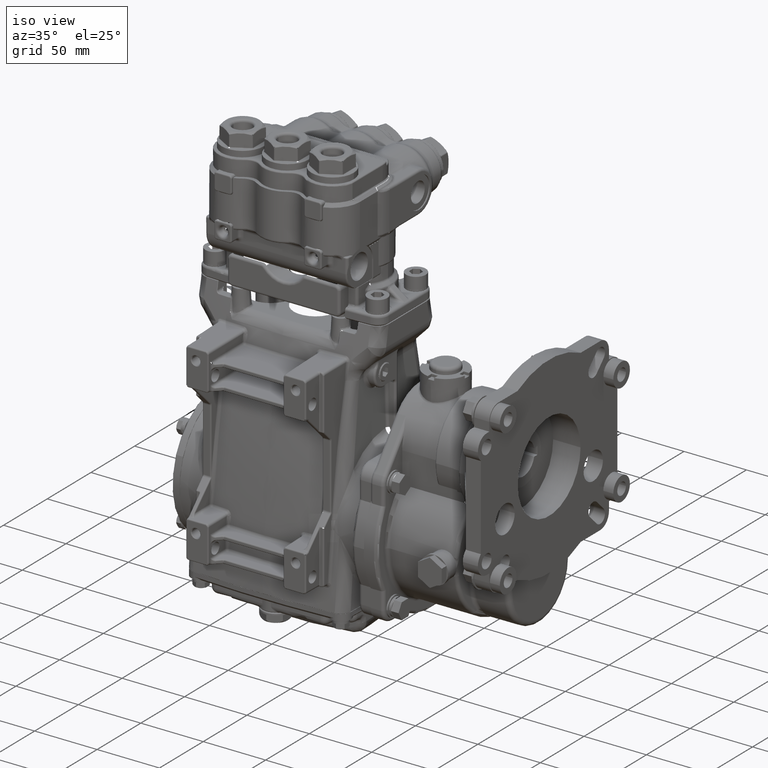
[diagram: clean part render]
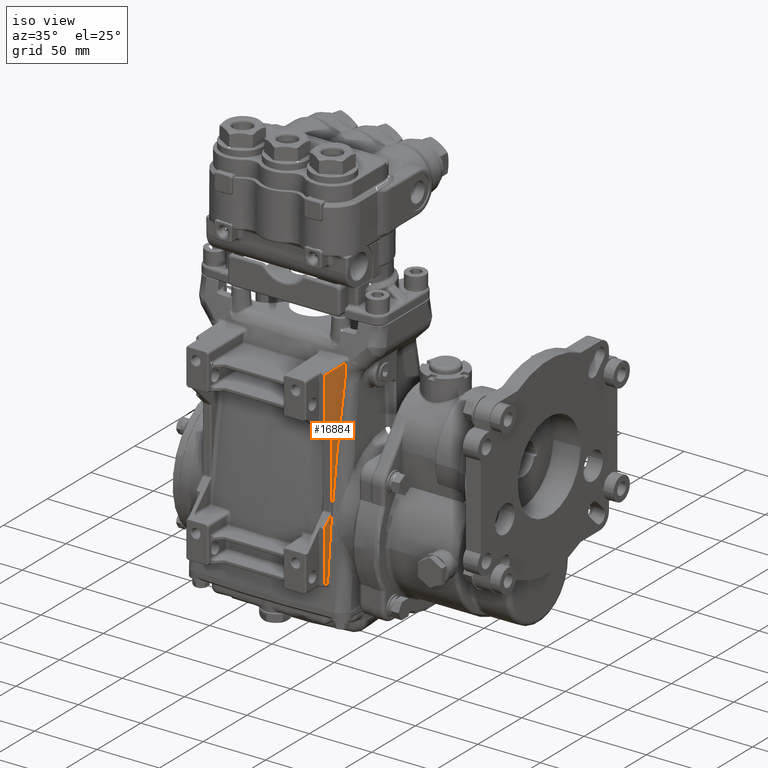
[diagram: same view with one face highlighted and labeled with its STEP entity id]
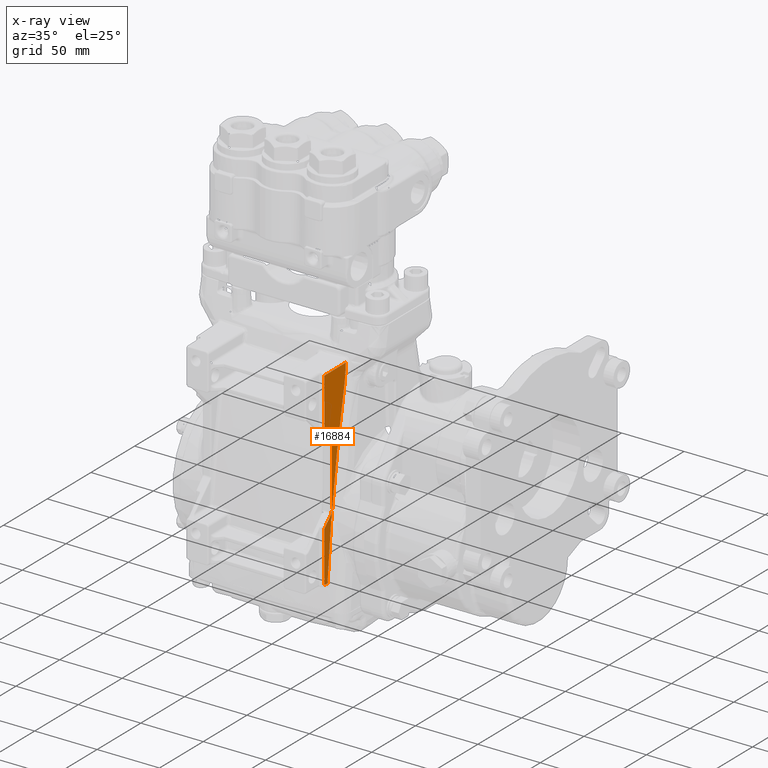
[diagram: x-ray of the same camera — body ghosted, the highlighted face saturated]
A machine part, iso view. The second image highlights one B-rep face of the part: STEP entity #16884.
The next image is the same camera in x-ray: the body ghosted, the highlighted face saturated — about 0% of this face is hidden behind the body in this view.
In plain terms, the highlighted planar face has unit normal (0.9998, -0.0175, -0).
Its self-contained STEP definition (entity closure, byte-faithful):
#85 = CARTESIAN_POINT ( 'NONE',  ( 2.024666307172124480, -2.187576567833773744, 0.3820917326334498099 ) ) ;
#745 = VERTEX_POINT ( 'NONE', #102130 ) ;
#772 = CARTESIAN_POINT ( 'NONE',  ( 2.024666307172124480, -2.187576567833773744, 0.3820917326334498099 ) ) ;
#1545 = CARTESIAN_POINT ( 'NONE',  ( 2.035574124630727955, -1.562668124155076610, 4.425917860110849311 ) ) ;
#2594 = CARTESIAN_POINT ( 'NONE',  ( 2.024130045813914869, -2.218298960469661907, 0.1030058499135407535 ) ) ;
#3363 = CARTESIAN_POINT ( 'NONE',  ( 2.035506776601280876, -1.566526490178004494, 4.342248327325532564 ) ) ;
#3821 = DIRECTION ( 'NONE',  ( -4.382719174871368785E-18, -5.544652149419484913E-17, -1.000000000000000000 ) ) ;
#4426 = CARTESIAN_POINT ( 'NONE',  ( 2.007897987981881460, -3.148232930855112688, 4.606335177339646592 ) ) ;
#8236 = CARTESIAN_POINT ( 'NONE',  ( 2.024130045813914869, -2.218298960469661907, 0.1030058499135407535 ) ) ;
#8488 = ORIENTED_EDGE ( 'NONE', *, *, #64650, .T. ) ;
#9021 = LINE ( 'NONE', #19478, #77513 ) ;
#12753 = ORIENTED_EDGE ( 'NONE', *, *, #44068, .T. ) ;
#15314 = CARTESIAN_POINT ( 'NONE',  ( 2.035070583935254529, -1.591515951278250185, 4.134508982286337897 ) ) ;
#15384 = CARTESIAN_POINT ( 'NONE',  ( 2.035885979979914051, -1.544801943165829528, 4.634323169337679182 ) ) ;
#16128 = VERTEX_POINT ( 'NONE', #20816 ) ;
#16884 = ADVANCED_FACE ( 'NONE', ( #59463 ), #78630, .T. ) ;
#17315 = EDGE_CURVE ( 'NONE', #89723, #16128, #9021, .T. ) ;
#17500 = CARTESIAN_POINT ( 'NONE',  ( 2.024122239692624614, -2.218746172858876875, 0.09705163386022504224 ) ) ;
#18616 =( BOUNDED_CURVE ( )  B_SPLINE_CURVE ( 3, ( #80224, #106914, #32613, #59830 ),
 .UNSPECIFIED., .F., .F. ) 
 B_SPLINE_CURVE_WITH_KNOTS ( ( 4, 4 ),
 ( 5.497787143782142394, 6.283185307179586232 ),
 .UNSPECIFIED. ) 
 CURVE ( )  GEOMETRIC_REPRESENTATION_ITEM ( )  RATIONAL_B_SPLINE_CURVE ( ( 1.000000000000000000, 0.9492530216741916771, 0.9492530216741916771, 1.000000000000000000 ) ) 
 REPRESENTATION_ITEM ( '' )  );
#19328 =( BOUNDED_CURVE ( )  B_SPLINE_CURVE ( 3, ( #8236, #84884, #36061, #772 ),
 .UNSPECIFIED., .F., .F. ) 
 B_SPLINE_CURVE_WITH_KNOTS ( ( 4, 4 ),
 ( 0.04639283067978829805, 0.1728886683575974470 ),
 .UNSPECIFIED. ) 
 CURVE ( )  GEOMETRIC_REPRESENTATION_ITEM ( )  RATIONAL_B_SPLINE_CURVE ( ( 1.000000000000000000, 0.9986670113725250042, 0.9986670113725250042, 1.000000000000000000 ) ) 
 REPRESENTATION_ITEM ( '' )  );
#19478 = CARTESIAN_POINT ( 'NONE',  ( 2.025042204343225016, -2.166041433324302101, 4.685039370078739829 ) ) ;
#20816 = CARTESIAN_POINT ( 'NONE',  ( 2.025042204343225016, -2.166041433324302101, 0.6252280440760272784 ) ) ;
#21296 = VECTOR ( 'NONE', #3821, 39.37007874015748143 ) ;
#21762 = LINE ( 'NONE', #96625, #21296 ) ;
#22791 = EDGE_CURVE ( 'NONE', #81750, #46234, #50236, .T. ) ;
#22976 = LINE ( 'NONE', #4426, #100705 ) ;
#24244 = CARTESIAN_POINT ( 'NONE',  ( 2.052310451624273835, -0.6038445928549840414, 2.138502022847753814 ) ) ;
#25457 = CARTESIAN_POINT ( 'NONE',  ( 2.022472638572481163, -2.313251757737954328, -0.8687623769942588448 ) ) ;
#26545 = CARTESIAN_POINT ( 'NONE',  ( 2.024809047652420535, -2.179398971194454582, 0.4384979107439024859 ) ) ;
#27292 =( BOUNDED_CURVE ( )  B_SPLINE_CURVE ( 3, ( #56151, #66054, #103825, #38819 ),
 .UNSPECIFIED., .F., .F. ) 
 B_SPLINE_CURVE_WITH_KNOTS ( ( 4, 4 ),
 ( 0.000000000000000000, 0.7853981633974426169 ),
 .UNSPECIFIED. ) 
 CURVE ( )  GEOMETRIC_REPRESENTATION_ITEM ( )  RATIONAL_B_SPLINE_CURVE ( ( 1.000000000000000000, 0.9492530216741918991, 0.9492530216741918991, 1.000000000000000000 ) ) 
 REPRESENTATION_ITEM ( '' )  );
#28403 = ORIENTED_EDGE ( 'NONE', *, *, #91039, .T. ) ;
#31034 = CARTESIAN_POINT ( 'NONE',  ( 2.035070583935254529, -1.591515951278250185, 4.134508982286337897 ) ) ;
#32613 = CARTESIAN_POINT ( 'NONE',  ( 2.025042204343225016, -2.166041433324302101, 2.674231928608780784 ) ) ;
#33514 = CARTESIAN_POINT ( 'NONE',  ( 2.023241349687006529, -2.269212327481651137, -0.3855620298490856079 ) ) ;
#35028 = ORIENTED_EDGE ( 'NONE', *, *, #51899, .T. ) ;
#35169 = VECTOR ( 'NONE', #113416, 39.37007874015748143 ) ;
#36061 = CARTESIAN_POINT ( 'NONE',  ( 2.024384900858268832, -2.203698324757216831, 0.2897733321543989882 ) ) ;
#37935 = B_SPLINE_CURVE_WITH_KNOTS ( 'NONE', 3,
 ( #102890, #93577, #46556, #112765, #48369, #31034 ),
 .UNSPECIFIED., .F., .F.,
 ( 4, 2, 4 ),
 ( 0.000000000000000000, 0.04753262879831760684, 0.09506525759663518593 ),
 .UNSPECIFIED. ) ;
#38644 = CARTESIAN_POINT ( 'NONE',  ( 2.019544546098117621, -2.481002063245562717, -1.350265200022809697 ) ) ;
#38819 = CARTESIAN_POINT ( 'NONE',  ( 2.024438369285970651, -2.200635120585733073, 0.5417114951169865744 ) ) ;
#39005 = CARTESIAN_POINT ( 'NONE',  ( 2.024723379495279474, -2.184306896630029193, 0.4008149286879045814 ) ) ;
#40485 = CARTESIAN_POINT ( 'NONE',  ( 2.035885979979914051, -1.544801943165829528, 4.634323169337679182 ) ) ;
#40796 = VECTOR ( 'NONE', #41144, 39.37007874015748143 ) ;
#41144 = DIRECTION ( 'NONE',  ( -4.382719174871368785E-18, -5.544652149419484913E-17, -1.000000000000000000 ) ) ;
#42163 = DIRECTION ( 'NONE',  ( -0.01744974916068272111, -0.9996954598818874604, -0.01744974916068266907 ) ) ;
#44068 = EDGE_CURVE ( 'NONE', #108055, #90115, #19328, .T. ) ;
#44075 = VERTEX_POINT ( 'NONE', #17500 ) ;
#46234 = VERTEX_POINT ( 'NONE', #116134 ) ;
#46556 = CARTESIAN_POINT ( 'NONE',  ( 2.027510179900914533, -2.024651208318652085, 1.676761298908299835 ) ) ;
#46891 = EDGE_CURVE ( 'NONE', #745, #65295, #71281, .T. ) ;
#47038 = VERTEX_POINT ( 'NONE', #65030 ) ;
#48369 = CARTESIAN_POINT ( 'NONE',  ( 2.032855556174041123, -1.718414806729250843, 3.523382190082024579 ) ) ;
#48446 = VERTEX_POINT ( 'NONE', #15384 ) ;
#48611 = EDGE_CURVE ( 'NONE', #16128, #745, #27292, .T. ) ;
#49017 = CARTESIAN_POINT ( 'NONE',  ( 1.999059999529802845, -3.654560950167802691, 4.179930869898172752 ) ) ;
#49698 = EDGE_CURVE ( 'NONE', #46234, #89723, #18616, .T. ) ;
#50030 = ORIENTED_EDGE ( 'NONE', *, *, #17315, .T. ) ;
#50236 = LINE ( 'NONE', #49017, #35169 ) ;
#50705 = CARTESIAN_POINT ( 'NONE',  ( 2.024122239692624614, -2.218746172858876875, 0.09705163386022504224 ) ) ;
#50932 = ORIENTED_EDGE ( 'NONE', *, *, #51350, .T. ) ;
#51350 = EDGE_CURVE ( 'NONE', #65295, #101919, #108583, .T. ) ;
#51612 = ORIENTED_EDGE ( 'NONE', *, *, #93024, .T. ) ;
#51899 = EDGE_CURVE ( 'NONE', #90115, #52185, #108297, .T. ) ;
#52115 = ORIENTED_EDGE ( 'NONE', *, *, #22791, .T. ) ;
#52185 = VERTEX_POINT ( 'NONE', #26545 ) ;
#53549 = ORIENTED_EDGE ( 'NONE', *, *, #48611, .T. ) ;
#55463 = CARTESIAN_POINT ( 'NONE',  ( 2.019544546098117177, -2.481002063245562272, 4.617981735455881420 ) ) ;
#56151 = CARTESIAN_POINT ( 'NONE',  ( 2.025042204343225016, -2.166041433324302101, 0.6252280440760272784 ) ) ;
#56631 = VERTEX_POINT ( 'NONE', #15314 ) ;
#57211 = DIRECTION ( 'NONE',  ( -4.382719174871368785E-18, -5.544652149419484913E-17, -1.000000000000000000 ) ) ;
#57534 = ORIENTED_EDGE ( 'NONE', *, *, #102455, .T. ) ;
#58700 = ORIENTED_EDGE ( 'NONE', *, *, #46891, .T. ) ;
#58841 = CARTESIAN_POINT ( 'NONE',  ( 2.007874015748031482, -3.149606299212598159, 4.685039370078739829 ) ) ;
#59010 = CARTESIAN_POINT ( 'NONE',  ( 2.035603110302397045, -1.561007536137295038, 4.467777737778649616 ) ) ;
#59463 = FACE_OUTER_BOUND ( 'NONE', #95830, .T. ) ;
#59830 = CARTESIAN_POINT ( 'NONE',  ( 2.025042204343225016, -2.166041433324302101, 2.642488491357046332 ) ) ;
#61958 = DIRECTION ( 'NONE',  ( -0.01234165475093671263, -0.7070529271412423489, -0.7070529271412498984 ) ) ;
#62553 = CARTESIAN_POINT ( 'NONE',  ( 2.021813116366593110, -2.351035759607917441, -1.352533770291285187 ) ) ;
#64165 = ORIENTED_EDGE ( 'NONE', *, *, #49698, .T. ) ;
#64650 = EDGE_CURVE ( 'NONE', #56631, #48446, #119014, .T. ) ;
#65030 = CARTESIAN_POINT ( 'NONE',  ( 2.021813116366593110, -2.351035759607917441, -1.352533770291285187 ) ) ;
#65295 = VERTEX_POINT ( 'NONE', #72273 ) ;
#66054 = CARTESIAN_POINT ( 'NONE',  ( 2.025042204343225016, -2.166041433324302101, 0.5934846068242922712 ) ) ;
#66194 = CARTESIAN_POINT ( 'NONE',  ( 2.024666307172124480, -2.187576567833773744, 0.3820917326334498099 ) ) ;
#67716 = CARTESIAN_POINT ( 'NONE',  ( 2.035219967660943929, -1.582957763365248738, 4.175723994886459955 ) ) ;
#68307 = ORIENTED_EDGE ( 'NONE', *, *, #112953, .T. ) ;
#71281 = LINE ( 'NONE', #24244, #98419 ) ;
#72273 = CARTESIAN_POINT ( 'NONE',  ( 2.019544546098117621, -2.481002063245562272, 0.2613445524571549883 ) ) ;
#74508 = VERTEX_POINT ( 'NONE', #55463 ) ;
#77513 = VECTOR ( 'NONE', #57211, 39.37007874015748143 ) ;
#78630 = PLANE ( 'NONE',  #89380 ) ;
#78882 = VECTOR ( 'NONE', #101265, 39.37007874015748854 ) ;
#80224 = CARTESIAN_POINT ( 'NONE',  ( 2.024438369285970651, -2.200635120585733073, 2.726005040316087147 ) ) ;
#80825 = LINE ( 'NONE', #119179, #78882 ) ;
#81750 = VERTEX_POINT ( 'NONE', #82322 ) ;
#82322 = CARTESIAN_POINT ( 'NONE',  ( 2.019544546098117621, -2.481002063245561384, 3.006371982975918566 ) ) ;
#84884 = CARTESIAN_POINT ( 'NONE',  ( 2.024205908477390903, -2.213952791389914854, 0.1966205329591511619 ) ) ;
#87222 = CARTESIAN_POINT ( 'NONE',  ( 2.024128434642699759, -2.218391264406749386, 0.1010176613143911745 ) ) ;
#87318 = DIRECTION ( 'NONE',  ( 0.01745240643728354982, 0.9998476951563912696, -5.551456571675039549E-17 ) ) ;
#88446 = CARTESIAN_POINT ( 'NONE',  ( 2.024125852835092942, -2.218539176065493113, 0.09903116809614823102 ) ) ;
#88541 = DIRECTION ( 'NONE',  ( 0.9998476951563912696, -0.01745240643728354982, -3.414376436862591485E-18 ) ) ;
#88713 = CARTESIAN_POINT ( 'NONE',  ( 2.035325044590194477, -1.576937910120207897, 4.217176319505592019 ) ) ;
#89380 = AXIS2_PLACEMENT_3D ( 'NONE', #58841, #88541, #87318 ) ;
#89723 = VERTEX_POINT ( 'NONE', #102902 ) ;
#90115 = VERTEX_POINT ( 'NONE', #66194 ) ;
#91039 = EDGE_CURVE ( 'NONE', #44075, #108055, #91489, .T. ) ;
#91489 = B_SPLINE_CURVE_WITH_KNOTS ( 'NONE', 3,
 ( #50705, #88446, #87222, #105223 ),
 .UNSPECIFIED., .F., .F.,
 ( 4, 4 ),
 ( 0.000000000000000000, 0.0001516632036106965958 ),
 .UNSPECIFIED. ) ;
#93024 = EDGE_CURVE ( 'NONE', #52185, #56631, #37935, .T. ) ;
#93577 = CARTESIAN_POINT ( 'NONE',  ( 2.026051067676749362, -2.108243691656040752, 1.058551109978491223 ) ) ;
#94704 = CARTESIAN_POINT ( 'NONE',  ( 2.024809047652420535, -2.179398971194454582, 0.4384979107439024859 ) ) ;
#95830 = EDGE_LOOP ( 'NONE', ( #119181, #57534, #52115, #64165, #50030, #53549, #58700, #50932, #68307, #112941, #28403, #12753, #35028, #51612, #8488 ) ) ;
#95932 = CARTESIAN_POINT ( 'NONE',  ( 2.024771223151071720, -2.181565935425437530, 0.4196147988685192676 ) ) ;
#96625 = CARTESIAN_POINT ( 'NONE',  ( 2.019544546098117621, -2.481002063245562272, 3.006371982975918566 ) ) ;
#98211 = B_SPLINE_CURVE_WITH_KNOTS ( 'NONE', 3,
 ( #62553, #25457, #33514, #109034 ),
 .UNSPECIFIED., .F., .F.,
 ( 4, 4 ),
 ( 6.938893903907228378E-18, 0.03697252225670060594 ),
 .UNSPECIFIED. ) ;
#98419 = VECTOR ( 'NONE', #61958, 39.37007874015748854 ) ;
#100705 = VECTOR ( 'NONE', #42163, 39.37007874015748143 ) ;
#101265 = DIRECTION ( 'NONE',  ( 0.01744974916068272111, 0.9996954598818874604, -0.01744974916068278356 ) ) ;
#101919 = VERTEX_POINT ( 'NONE', #38644 ) ;
#102130 = CARTESIAN_POINT ( 'NONE',  ( 2.024438369285970651, -2.200635120585733073, 0.5417114951169865744 ) ) ;
#102455 = EDGE_CURVE ( 'NONE', #74508, #81750, #21762, .T. ) ;
#102890 = CARTESIAN_POINT ( 'NONE',  ( 2.024809047652420535, -2.179398971194454582, 0.4384979107439024859 ) ) ;
#102902 = CARTESIAN_POINT ( 'NONE',  ( 2.025042204343225016, -2.166041433324302101, 2.642488491357046332 ) ) ;
#103825 = CARTESIAN_POINT ( 'NONE',  ( 2.024830165668790816, -2.178189120846862004, 0.5641574948558583102 ) ) ;
#105223 = CARTESIAN_POINT ( 'NONE',  ( 2.024130045813914869, -2.218298960469661907, 0.1030058499135407535 ) ) ;
#105429 = EDGE_CURVE ( 'NONE', #48446, #74508, #22976, .T. ) ;
#106721 = CARTESIAN_POINT ( 'NONE',  ( 2.035070583935254529, -1.591515951278250185, 4.134508982286337897 ) ) ;
#106914 = CARTESIAN_POINT ( 'NONE',  ( 2.024830165668790816, -2.178189120846862004, 2.703559040577215189 ) ) ;
#108055 = VERTEX_POINT ( 'NONE', #2594 ) ;
#108297 = B_SPLINE_CURVE_WITH_KNOTS ( 'NONE', 3,
 ( #85, #39005, #95932, #94704 ),
 .UNSPECIFIED., .F., .F.,
 ( 4, 4 ),
 ( 0.000000000000000000, 0.001447699820419798061 ),
 .UNSPECIFIED. ) ;
#108583 = LINE ( 'NONE', #109177, #40796 ) ;
#109034 = CARTESIAN_POINT ( 'NONE',  ( 2.024122239692624614, -2.218746172858876875, 0.09705163386022504224 ) ) ;
#109177 = CARTESIAN_POINT ( 'NONE',  ( 2.019544546098117621, -2.481002063245562717, -1.349589986162939681 ) ) ;
#112765 = CARTESIAN_POINT ( 'NONE',  ( 2.030912172984652209, -1.829751155083217284, 2.909074709401717751 ) ) ;
#112941 = ORIENTED_EDGE ( 'NONE', *, *, #119656, .T. ) ;
#112953 = EDGE_CURVE ( 'NONE', #101919, #47038, #80825, .T. ) ;
#113416 = DIRECTION ( 'NONE',  ( 0.01234165475093670396, 0.7070529271412422379, -0.7070529271412501204 ) ) ;
#114736 = CARTESIAN_POINT ( 'NONE',  ( 2.035773768476307310, -1.551230535902015983, 4.592909058274513789 ) ) ;
#115932 = CARTESIAN_POINT ( 'NONE',  ( 2.035467708730060554, -1.568764687021154902, 4.300442451014714784 ) ) ;
#116134 = CARTESIAN_POINT ( 'NONE',  ( 2.024438369285970651, -2.200635120585733073, 2.726005040316087147 ) ) ;
#116569 = CARTESIAN_POINT ( 'NONE',  ( 2.035702988770760946, -1.555285502517031793, 4.551273033996242390 ) ) ;
#119014 = B_SPLINE_CURVE_WITH_KNOTS ( 'NONE', 3,
 ( #106721, #67716, #88713, #115932, #3363, #1545, #59010, #116569, #114736, #40485 ),
 .UNSPECIFIED., .F., .F.,
 ( 4, 2, 2, 2, 4 ),
 ( 0.000000000000000000, 0.003187656264406574843, 0.006375312528813149686, 0.009562968793219724095, 0.01275062505762629937 ),
 .UNSPECIFIED. ) ;
#119179 = CARTESIAN_POINT ( 'NONE',  ( 2.006039856856115300, -3.254685191755188001, -1.336760510780807598 ) ) ;
#119181 = ORIENTED_EDGE ( 'NONE', *, *, #105429, .T. ) ;
#119656 = EDGE_CURVE ( 'NONE', #47038, #44075, #98211, .T. ) ;